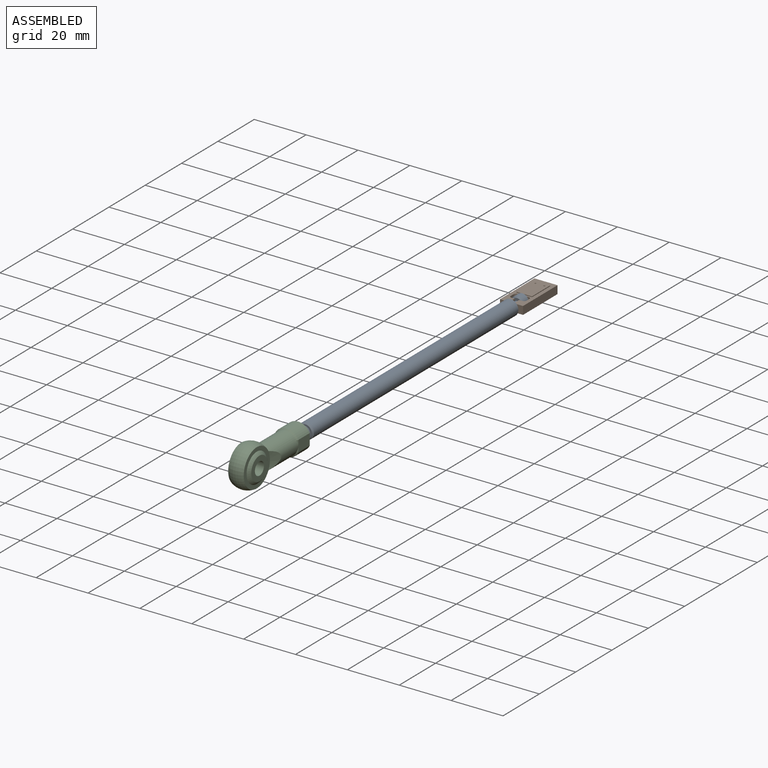
[diagram: assembled view]
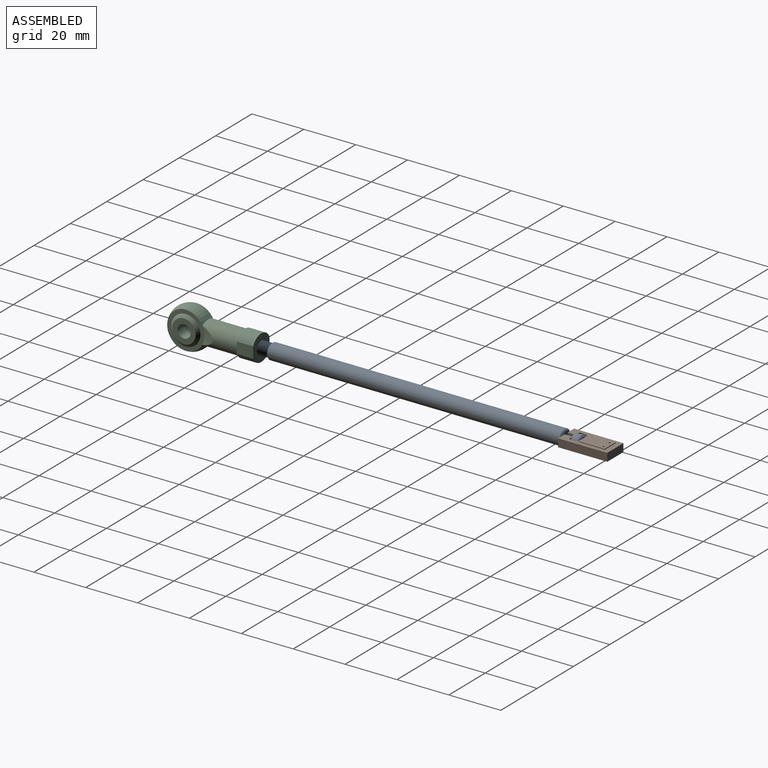
[diagram: assembled view, second angle]
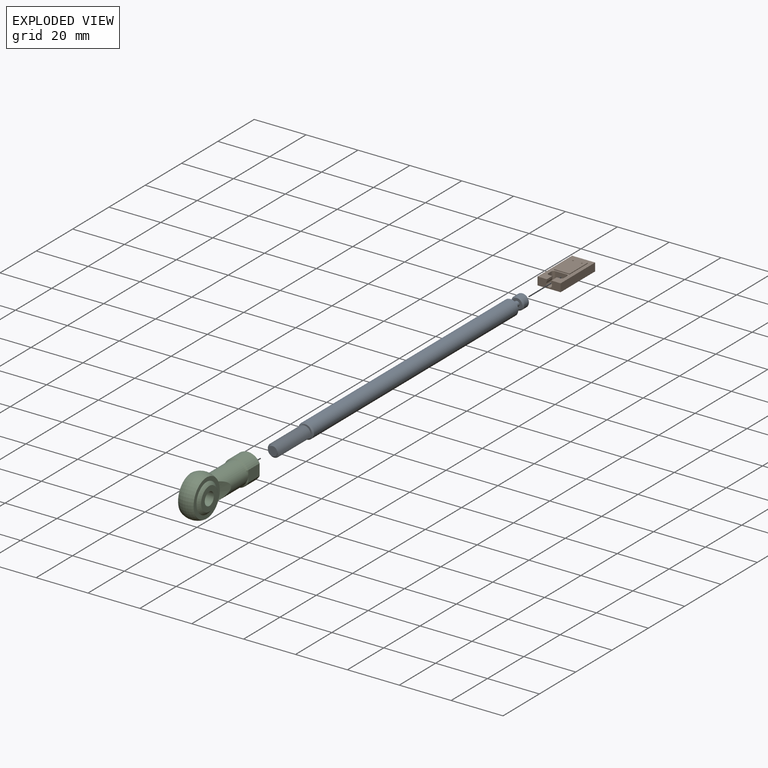
[diagram: exploded view]
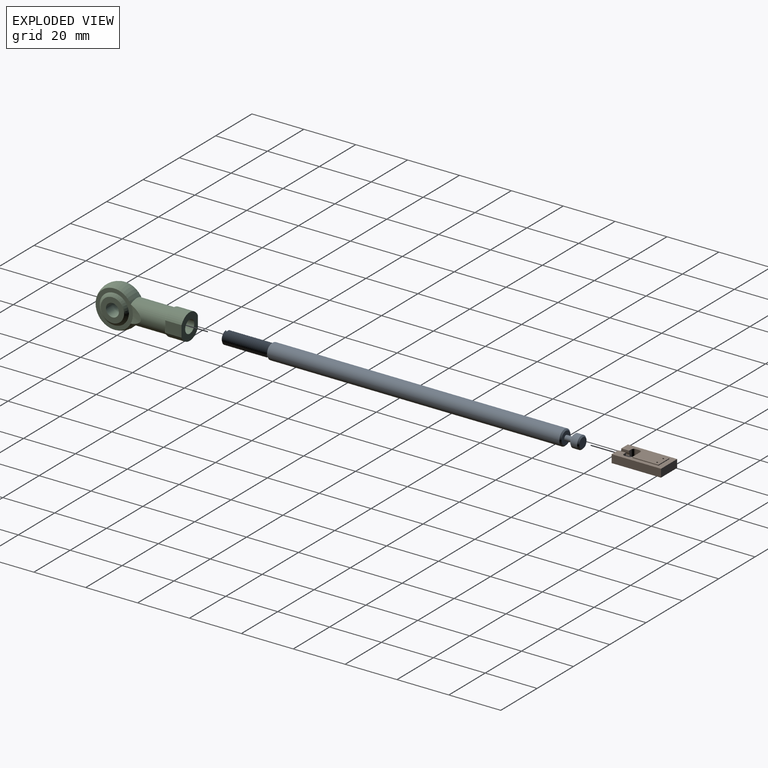
[diagram: exploded view, second angle]
ASSEMBLY  parts=3 mates=2
PART A: 23 faces, bbox 6x138x6 mm
  f0: plane 4x4mm, normal (0,1,0), area 12.6mm2, adj f20
  f1: cylinder r=2.5mm len=5mm, axis (0,-1,0), area 39.3mm2, adj f20,f21
  f2: plane 4x4mm, normal (0,-1,0), area 9.4mm2, adj f3,f21
  f3: cylinder r=1mm len=3mm, axis (0,-1,0), area 18.8mm2, adj f2,f4
  f4: plane 5x5mm, normal (0,1,0), area 16.5mm2, adj f3,f22
  f5: cylinder r=3mm len=112.5mm, axis (0,-1,0), area 2120.6mm2, adj f19,f22
  f6: plane 5x5mm, normal (0,-1,0), area 10.6mm2, adj f7,f19
  f7: cylinder r=1.7mm len=3.4mm, axis (0,-1,0), area 10.7mm2, adj f6,f8
  f8: plane 3.6x3.6mm, normal (0,1,0), area 1.1mm2, adj f7,f12
  f9: cylinder r=1.8mm len=0.55mm, axis (0,1,0), area 0mm2, adj f10,f13,f18
  f10: plane 0.75x0.68mm, normal (-1,0,0), area 0.3mm2, adj f9,f13,f15,f16,f17
  f11: plane 0.75x0.67mm, normal (-0.22,0,-0.97), area 0.3mm2, adj f12,f14,f15,f16
  f12: cylinder r=1.8mm len=3.6mm, axis (0,1,0), area 4.6mm2, adj f8,f11,f14
  f13: bspline ~4.34x3.76mm, area 1mm2, adj f9,f10,f16,f17
  f14: bspline ~3.75x3.75mm, area 1mm2, adj f11,f12,f15
  f15: bspline ~17.38x5.74mm, area 232.9mm2, adj f10,f11,f14,f16
  f16: bspline ~17.38x5.74mm, area 233.3mm2, adj f10,f11,f13,f15
  f17: cylinder r=1.8mm len=3.6mm, axis (0,-1,0), area 3.6mm2, adj f10,f13,f18
  f18: plane 3.6x3.6mm, normal (0,-1,0), area 10.2mm2, adj f9,f17
  f19: cone r=2.5mm half-angle=45deg, axis (0,1,0), area 12.2mm2, adj f5,f6
  f20: cone r=2.5mm half-angle=45deg, axis (0,-1,0), area 10mm2, adj f0,f1
  f21: cone r=2mm half-angle=45deg, axis (0,1,0), area 10mm2, adj f1,f2
  f22: cone r=3mm half-angle=45deg, axis (0,-1,0), area 12.2mm2, adj f4,f5
PART B: 29 faces, bbox 8.9x19x3.7 mm
  f0: plane 8.9x3.1mm, normal (0,-1,0), area 22.8mm2, adj f1,f2,f4,f5,f26,f27,f28
  f1: plane 19x8.9mm, normal (0,0,-1), area 88.6mm2, adj f0,f3,f4,f5,f11,f12,f13,f14
  f2: plane 19x8.9mm, normal (0,0,1), area 83.5mm2, adj f0,f3,f4,f5,f7,f8,f9,f10
  f3: plane 8.9x3.1mm, normal (0,1,0), area 27.6mm2, adj f1,f2,f4,f5
  f4: plane 19x3.1mm, normal (1,0,0), area 58.9mm2, adj f0,f1,f2,f3
  f5: plane 19x3.1mm, normal (-1,0,0), area 58.9mm2, adj f0,f1,f2,f3
  f6: plane 10x6mm, normal (0,0,1), area 59.4mm2, adj f7,f8,f9,f10,f16,f17
  f7: plane 10x0.3mm, normal (1,0,0), area 3mm2, adj f2,f6,f8,f10
  f8: plane 6x0.3mm, normal (0,-1,0), area 1.8mm2, adj f2,f6,f7,f9
  f9: plane 10x0.3mm, normal (-1,0,0), area 3mm2, adj f2,f6,f8,f10
  f10: plane 6x0.3mm, normal (0,1,0), area 1.8mm2, adj f2,f6,f7,f9
  f11: plane 6x0.3mm, normal (0,1,0), area 1.8mm2, adj f1,f12,f14,f15
  f12: plane 10x0.3mm, normal (-1,0,0), area 3mm2, adj f1,f11,f13,f15
  f13: plane 6x0.3mm, normal (0,-1,0), area 1.8mm2, adj f1,f12,f14,f15
  f14: plane 10x0.3mm, normal (1,0,0), area 3mm2, adj f1,f11,f13,f15
  f15: plane 10x6mm, normal (0,0,-1), area 59.4mm2, adj f11,f12,f13,f14,f16,f17
  f16: cylinder r=0.3mm len=3.7mm, axis (0,0,1), area 7mm2, adj f6,f15
  f17: cylinder r=0.3mm len=3.7mm, axis (0,0,1), area 7mm2, adj f6,f15
  f18: cylinder r=1mm len=3.1mm, axis (0,0,1), area 4.9mm2, adj f1,f2,f19,f25
  f19: plane 4.1x3.1mm, normal (0,1,0), area 7.9mm2, adj f1,f2,f18,f20,f26,f27,f28
  f20: cylinder r=1mm len=3.1mm, axis (0,0,1), area 4.9mm2, adj f1,f2,f19,f21
  f21: plane 3.1x1.5mm, normal (-1,0,0), area 4.6mm2, adj f1,f2,f20,f22
  f22: cylinder r=1mm len=3.1mm, axis (0,0,1), area 4.9mm2, adj f1,f2,f21,f23
  f23: plane 4.1x3.1mm, normal (0,-1,0), area 12.7mm2, adj f1,f2,f22,f24
  f24: cylinder r=1mm len=3.1mm, axis (0,0,1), area 4.9mm2, adj f1,f2,f23,f25
  f25: plane 3.1x1.5mm, normal (1,0,0), area 4.6mm2, adj f1,f2,f18,f24
  f26: plane 3x0.85mm, normal (1,0,0), area 2.6mm2, adj f0,f2,f19,f27
  f27: cylinder r=1.1mm len=3mm, axis (0,-1,0), area 14.9mm2, adj f0,f19,f26,f28
  f28: plane 3x0.85mm, normal (-1,0,0), area 2.6mm2, adj f0,f2,f19,f27
PART C: 24 faces, bbox 9x35x14.4 mm
  f0: cylinder r=4.5mm len=14.38mm, axis (0,1,0), area 343.3mm2, adj f5,f16,f17,f18,f19,f20,f21,f22
  f1: plane 9x9mm, normal (-1,0,0), area 44mm2, adj f7,f8
  f2: plane 9x9mm, normal (1,0,0), area 44mm2, adj f3,f8
  f3: torus R=2mm, axis (-1,0,0), area 48.8mm2, adj f2,f4
  f4: plane 14.39x14.39mm, normal (1,0,0), area 62.8mm2, adj f3,f5,f22
  f5: torus R=2mm, axis (-1,0,0), area 250.4mm2, adj f0,f4,f6
  f6: plane 14.39x14.39mm, normal (-1,0,0), area 62.8mm2, adj f5,f7,f23
  f7: torus R=2mm, axis (-1,0,0), area 48.8mm2, adj f1,f6
  f8: cylinder r=2.5mm len=8mm, axis (-1,0,0), area 125.7mm2, adj f1,f2
  f9: plane 10x9mm, normal (0,1,0), area 56mm2, adj f10,f11,f12,f13,f14
  f10: cylinder r=5mm len=9mm, axis (0,1,0), area 70mm2, adj f9,f11,f12,f19
  f11: plane 6.25x4.36mm, normal (1,0,0), area 27.2mm2, adj f9,f10,f13,f16,f17
  f12: plane 6.25x4.36mm, normal (-1,0,0), area 27.2mm2, adj f9,f10,f13,f20,f21
  f13: cylinder r=5mm len=9mm, axis (0,1,0), area 70mm2, adj f9,f11,f12,f18
  f14: cylinder r=2.5mm len=14mm, axis (0,1,0), area 219.9mm2, adj f9,f15
  f15: plane 5x5mm, normal (0,1,0), area 19.6mm2, adj f14
  f16: plane 2.18x0.5mm, normal (0.71,-0.71,0), area 0.5mm2, adj f0,f11,f18
  f17: plane 2.18x0.5mm, normal (0.71,-0.71,0), area 0.5mm2, adj f0,f11,f19
  f18: cone r=4.5mm half-angle=45deg, axis (0,1,0), area 7.4mm2, adj f0,f13,f16,f20
  f19: cone r=4.5mm half-angle=45deg, axis (0,1,0), area 7.4mm2, adj f0,f10,f17,f21
  f20: plane 2.18x0.5mm, normal (-0.71,-0.71,0), area 0.5mm2, adj f0,f12,f18
  f21: plane 2.18x0.5mm, normal (-0.71,-0.71,0), area 0.5mm2, adj f0,f12,f19
  f22: cone r=7.2mm half-angle=70deg, axis (1,0,0), area 20.7mm2, adj f0,f4
  f23: cone r=7.2mm half-angle=70deg, axis (-1,0,0), area 20.7mm2, adj f0,f6
PLACE A t=(0,-38.34,0.19)mm
PLACE B t=(-4.45,93.16,0.19)mm
PLACE C t=(0,-51.34,0.19)mm fixed
MATE fastened C.f0 <-> A.f1  axis (0,1,0) through (0,-38.34,0.19)mm
MATE fastened A.f1 <-> B.f27  axis (0,-1,0) through (0,93.16,0.19)mm
